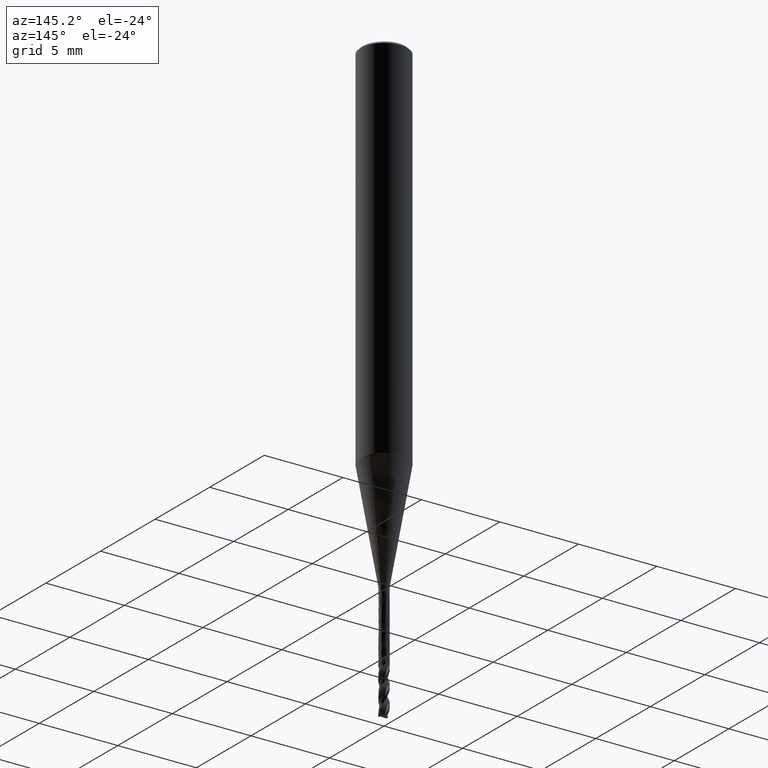
[diagram: clean part render]
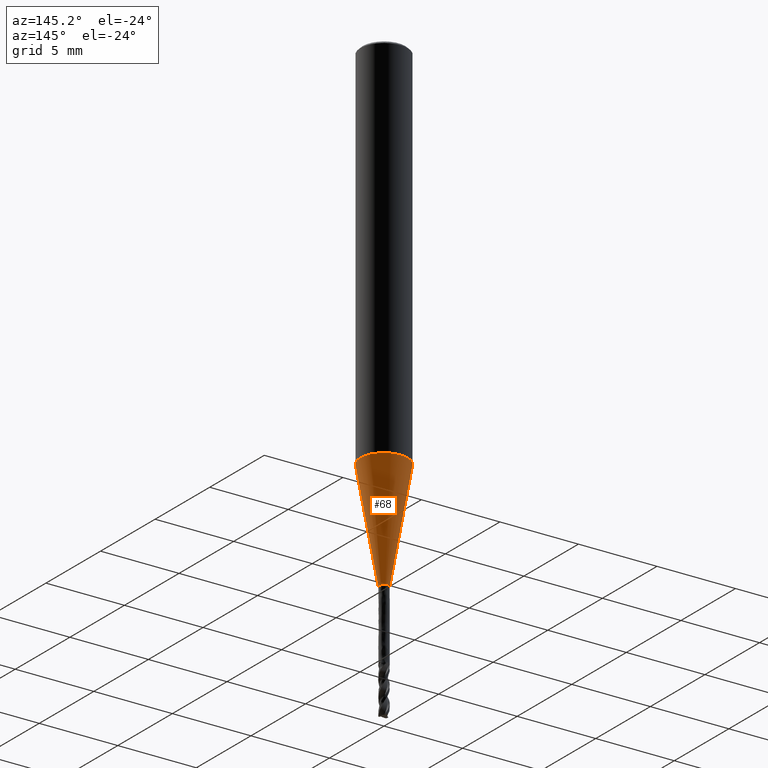
[diagram: same view with one face highlighted and labeled with its STEP entity id]
A machine part, auxiliary view. The second image highlights one B-rep face of the part: STEP entity #68.
In plain terms, the highlighted face is a freeform B-spline surface patch.
Its self-contained STEP definition (entity closure, byte-faithful):
#68 = ADVANCED_FACE('', (#69), #96, .T.);
#69 = FACE_OUTER_BOUND('', #70, .T.);
#70 = EDGE_LOOP('', (#71, #81, #88, #89));
#71 = ORIENTED_EDGE('', *, *, #72, .F.);
#72 = EDGE_CURVE('', #73, #75, #77, .T.);
#73 = VERTEX_POINT('', #74);
#74 = CARTESIAN_POINT('', (-1.5, 1.53693173292993E-15, -23.6));
#75 = VERTEX_POINT('', #76);
#76 = CARTESIAN_POINT('', (-0.3, 1.89207930468266E-15, -30.6));
#77 = LINE('', #78, #79);
#78 = CARTESIAN_POINT('', (-1.5, 1.53693173292993E-15, -23.6));
#79 = VECTOR('', #80, 7.10211236182588);
#80 = DIRECTION('', (1.2, 3.55147571752732E-16, -7.));
#81 = ORIENTED_EDGE('', *, *, #82, .T.);
#82 = EDGE_CURVE('', #73, #73, #83, .T.);
#83 = CIRCLE('', #84, 1.5);
#84 = AXIS2_PLACEMENT_3D('', #85, #86, #87);
#85 = CARTESIAN_POINT('', (8.84858271770496E-32, 1.44508322299388E-15, -23.6));
#86 = DIRECTION('', (3.74939945665464E-33, 6.12323399573677E-17, -1.));
#87 = DIRECTION('', (-1., 6.12323399573677E-17, 0.));
#88 = ORIENTED_EDGE('', *, *, #72, .T.);
#89 = ORIENTED_EDGE('', *, *, #90, .F.);
#90 = EDGE_CURVE('', #75, #75, #91, .T.);
#91 = CIRCLE('', #92, 0.300000000000006);
#92 = AXIS2_PLACEMENT_3D('', #93, #94, #95);
#93 = CARTESIAN_POINT('', (1.14731623373632E-31, 1.87370960269545E-15, -30.6));
#94 = DIRECTION('', (3.74939945665464E-33, 6.12323399573677E-17, -1.));
#95 = DIRECTION('', (-1., 6.12323399573677E-17, 0.));
#96 = (
   BOUNDED_SURFACE ()
   B_SPLINE_SURFACE (2, 1, ((#97, #98), (#99, #100), (#101, #102), (#103, #104), (#105, #106), (#107, #108), (#109, #110), (#111, #112), (#113, #114)), .UNSPECIFIED., .T., .F., .U.)
   B_SPLINE_SURFACE_WITH_KNOTS ((3, 2, 2, 2, 3), (2, 2), (0., 0.25, 0.5, 0.75, 1.), (0., 1.), .UNSPECIFIED.)
   GEOMETRIC_REPRESENTATION_ITEM ()
   RATIONAL_B_SPLINE_SURFACE (((1., 1.), (0.707106781186548, 0.707106781186548), (1., 1.), (0.707106781186548, 0.707106781186548), (1., 1.), (0.707106781186548, 0.707106781186548), (1., 1.), (0.707106781186548, 0.707106781186548), (1., 1.)))
   REPRESENTATION_ITEM ('')
   SURFACE ()
);
#97 = CARTESIAN_POINT('', (-1.5, 1.53693173292993E-15, -23.6));
#98 = CARTESIAN_POINT('', (-0.3, 1.89207930468266E-15, -30.6));
#99 = CARTESIAN_POINT('', (-1.5, 1.5, -23.6));
#100 = CARTESIAN_POINT('', (-0.3, 0.300000000000002, -30.6));
#101 = CARTESIAN_POINT('', (8.62816615085482E-32, 1.5, -23.6));
#102 = CARTESIAN_POINT('', (1.17096540618744E-31, 0.300000000000002, -30.6));
#103 = CARTESIAN_POINT('', (1.5, 1.5, -23.6));
#104 = CARTESIAN_POINT('', (0.3, 0.300000000000002, -30.6));
#105 = CARTESIAN_POINT('', (1.5, 1.53693173292993E-15, -23.6));
#106 = CARTESIAN_POINT('', (0.3, 1.89207930468266E-15, -30.6));
#107 = CARTESIAN_POINT('', (1.5, -1.5, -23.6));
#108 = CARTESIAN_POINT('', (0.3, -0.299999999999998, -30.6));
#109 = CARTESIAN_POINT('', (1.83697019872103E-16, -1.5, -23.6));
#110 = CARTESIAN_POINT('', (3.67394039744207E-17, -0.299999999999998, -30.6));
#111 = CARTESIAN_POINT('', (-1.5, -1.5, -23.6));
#112 = CARTESIAN_POINT('', (-0.3, -0.299999999999998, -30.6));
#113 = CARTESIAN_POINT('', (-1.5, 1.53693173292993E-15, -23.6));
#114 = CARTESIAN_POINT('', (-0.3, 1.89207930468266E-15, -30.6));